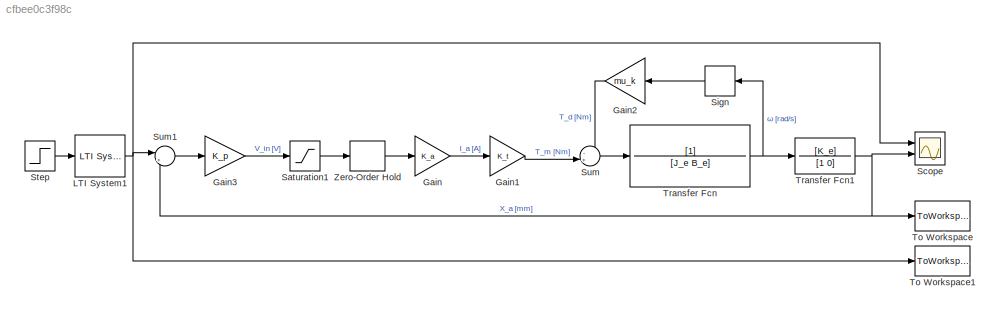
MODEL slx_cfbee0c3f98c
KIND model
CONFIG AbsTol = auto
CONFIG EnableMultiTasking = off
CONFIG FixedStep = 0.0002
CONFIG MaxStep = auto
CONFIG MinStep = auto
CONFIG RelTol = 1e-3
CONFIG SampleTimeConstraint = Unconstrained
CONFIG SolverName = VariableStepAuto
CONFIG StartTime = 0.0
CONFIG StopTime = 10.0
BLOCK [Gain] Gain
  Gain = K_a
BLOCK [Gain] Gain1
  Gain = K_t
BLOCK [Gain] Gain2
  Gain = mu_k
  NameLocation = top
BLOCK [Gain] Gain3
  Gain = K_p
BLOCK [Reference] LTI System1  REF=cstblocks/LTI System
  Ports = [1, 1]
  SourceBlock = cstblocks/LTI System
  SourceProductBaseCode = CT
  SourceType = LTI Block
BLOCK [Saturate] Saturation1
  LowerLimit = -sat
  UpperLimit = sat
  ZeroCross = off
BLOCK [Scope] Scope
  Floating = off
  NumInputPorts = 2
  Ports = [2]
  ScopeSpecificationString = Simulink.scopes.TimeScopeBlockCfg('CurrentConfiguration', extmgr.ConfigurationSet(extmgr.Configuration('Core','General UI',true),extmgr.Configuration('Core','Source UI',true),extmgr.Configuration('Sources','WiredSimulink',true),extmgr.Configuration('Visuals','Time Domain',true,'SerializedDisplays',{struct('MinYLimReal','-1.25035','MaxYLimReal','11.25004','YLabelReal','','MinYLimMag','0.00000','Max...<+1373ch>
BLOCK [Signum] Sign
  NameLocation = top
  ZeroCross = off
BLOCK [Step] Step
  SampleTime = 0
  Time = t_start
BLOCK [Sum] Sum
  Inputs = -+|
  NameLocation = top
  Ports = [2, 1]
BLOCK [Sum] Sum1
  Inputs = |+-
  NameLocation = top
  Ports = [2, 1]
BLOCK [ToWorkspace] To Workspace
  FixptAsFi = on
  MaxDataPoints = inf
  Ports = [1]
  SampleTime = -1
  SaveFormat = Timeseries
  VariableName = out
BLOCK [ToWorkspace] To Workspace1
  FixptAsFi = on
  MaxDataPoints = inf
  Ports = [1]
  SampleTime = -1
  SaveFormat = Timeseries
  VariableName = in
BLOCK [TransferFcn] Transfer Fcn
  Denominator = [J_e B_e]
BLOCK [TransferFcn] Transfer Fcn1
  Denominator = [1 0]
  Numerator = [K_e]
BLOCK [ZeroOrderHold] Zero-Order Hold
  SampleTime = T
LINE Gain1:1 -> Sum:2
LINE Gain2:1 -> Sum:1
LINE Gain3:1 -> Saturation1:1
LINE Gain:1 -> Gain1:1
NET LTI System1:1 -> Scope:1, Sum1:1, To Workspace1:1
LINE Saturation1:1 -> Zero-Order Hold:1
LINE Sign:1 -> Gain2:1
LINE Step:1 -> LTI System1:1
LINE Sum1:1 -> Gain3:1
LINE Sum:1 -> Transfer Fcn:1
NET Transfer Fcn1:1 -> Scope:2, Sum1:2, To Workspace:1
NET Transfer Fcn:1 -> Sign:1, Transfer Fcn1:1
LINE Zero-Order Hold:1 -> Gain:1
note: NET lines group one-source signal fan-out (src -> all destinations, sorted); 1:1 wires keep LINE
